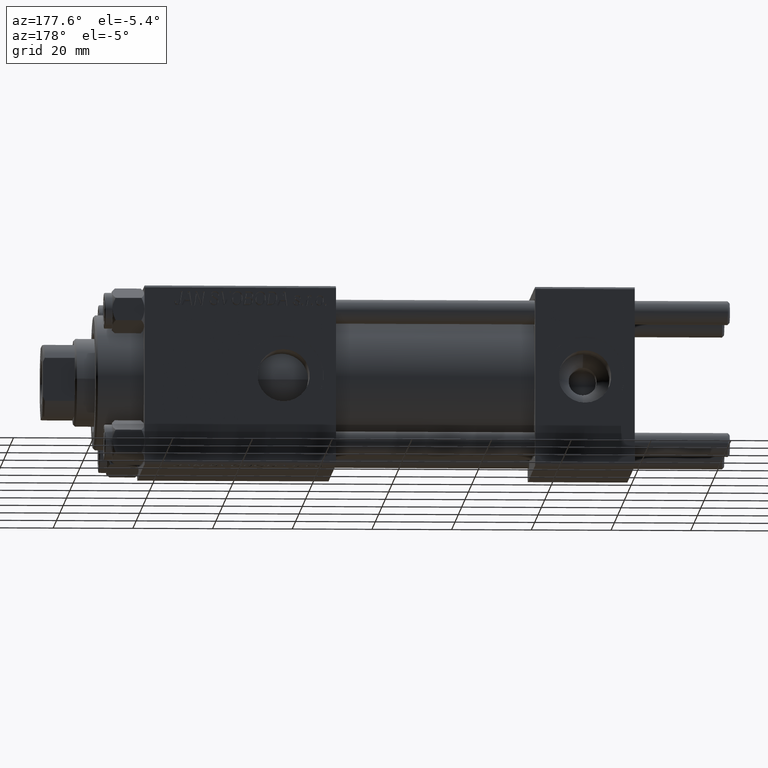
[diagram: clean part render]
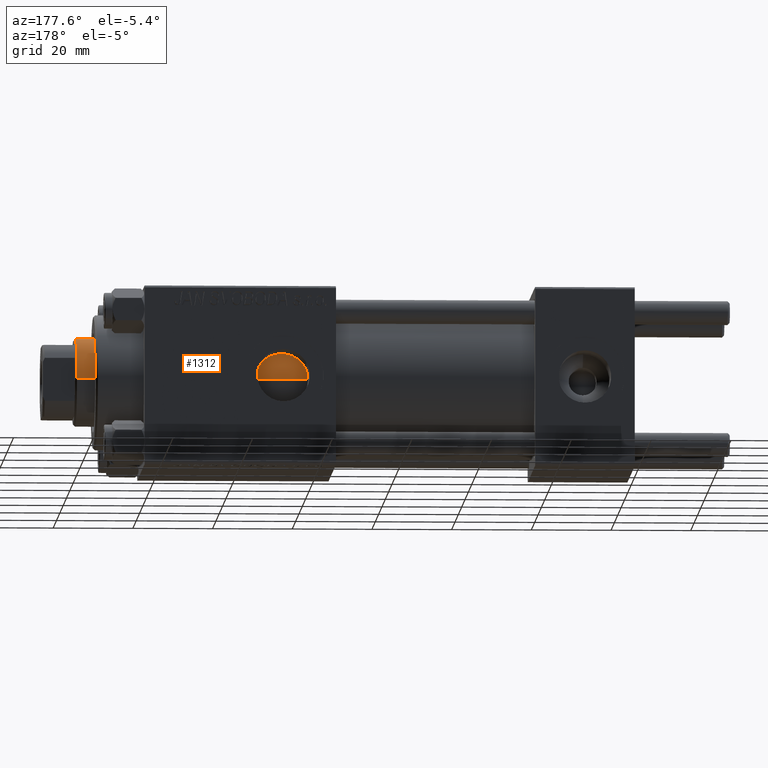
[diagram: same view with one face highlighted and labeled with its STEP entity id]
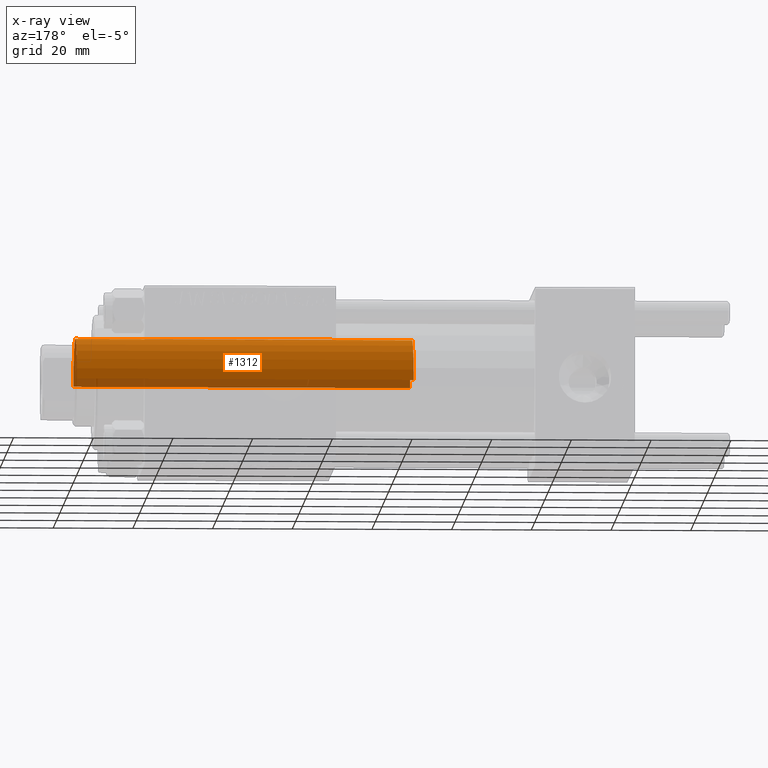
[diagram: x-ray of the same camera — body ghosted, the highlighted face saturated]
A machine part, auxiliary view. The second image highlights one B-rep face of the part: STEP entity #1312.
The next image is the same camera in x-ray: the body ghosted, the highlighted face saturated — about 18% of this face is hidden behind the body in this view.
In plain terms, the highlighted cylindrical surface (partial cylindrical patch) has radius 11 mm, axis along (-1, 0, 0).
Its self-contained STEP definition (entity closure, byte-faithful):
#1312 = ADVANCED_FACE ( 'NONE', ( #40380 ), #47169, .T. ) ;
#9300 = EDGE_CURVE ( 'NONE', #49308, #23341, #20912, .T. ) ;
#9402 = EDGE_LOOP ( 'NONE', ( #46488, #14556, #34116, #34864 ) ) ;
#9907 = CARTESIAN_POINT ( 'NONE',  ( 11.00000000000000000, 1.347111479062088405E-15, 30.00000000000000000 ) ) ;
#12815 = CARTESIAN_POINT ( 'NONE',  ( 11.00000000000000000, 1.347111479062088405E-15, 115.0000000000000000 ) ) ;
#12898 = CARTESIAN_POINT ( 'NONE',  ( 0.000000000000000000, 0.000000000000000000, 115.0000000000000000 ) ) ;
#14556 = ORIENTED_EDGE ( 'NONE', *, *, #9300, .T. ) ;
#16640 = CARTESIAN_POINT ( 'NONE',  ( -11.00000000000000000, 0.000000000000000000, 115.0000000000000000 ) ) ;
#18299 = VERTEX_POINT ( 'NONE', #33983 ) ;
#20556 = CARTESIAN_POINT ( 'NONE',  ( -11.00000000000000000, 0.000000000000000000, 114.5000000000000142 ) ) ;
#20912 = CIRCLE ( 'NONE', #46658, 11.00000000000000000 ) ;
#21331 = CARTESIAN_POINT ( 'NONE',  ( 0.000000000000000000, 0.000000000000000000, 30.00000000000000000 ) ) ;
#22050 = EDGE_CURVE ( 'NONE', #18299, #47957, #49335, .T. ) ;
#22748 = EDGE_CURVE ( 'NONE', #23341, #18299, #48372, .T. ) ;
#23341 = VERTEX_POINT ( 'NONE', #20556 ) ;
#24264 = DIRECTION ( 'NONE',  ( -1.000000000000000000, 0.000000000000000000, 0.000000000000000000 ) ) ;
#24511 = DIRECTION ( 'NONE',  ( 1.000000000000000000, 0.000000000000000000, 0.000000000000000000 ) ) ;
#24664 = AXIS2_PLACEMENT_3D ( 'NONE', #12898, #43403, #24264 ) ;
#26806 = CARTESIAN_POINT ( 'NONE',  ( 11.00000000000000000, 1.347111479062088405E-15, 114.5000000000000142 ) ) ;
#28302 = CARTESIAN_POINT ( 'NONE',  ( 0.000000000000000000, 0.000000000000000000, 114.5000000000000142 ) ) ;
#29225 = AXIS2_PLACEMENT_3D ( 'NONE', #21331, #36392, #43925 ) ;
#29264 = VECTOR ( 'NONE', #40083, 1000.000000000000000 ) ;
#32268 = DIRECTION ( 'NONE',  ( -0.000000000000000000, -0.000000000000000000, -1.000000000000000000 ) ) ;
#33983 = CARTESIAN_POINT ( 'NONE',  ( -11.00000000000000000, 0.000000000000000000, 30.00000000000000000 ) ) ;
#34116 = ORIENTED_EDGE ( 'NONE', *, *, #22748, .T. ) ;
#34864 = ORIENTED_EDGE ( 'NONE', *, *, #22050, .T. ) ;
#36392 = DIRECTION ( 'NONE',  ( 0.000000000000000000, 0.000000000000000000, 1.000000000000000000 ) ) ;
#40083 = DIRECTION ( 'NONE',  ( -0.000000000000000000, -0.000000000000000000, -1.000000000000000000 ) ) ;
#40380 = FACE_OUTER_BOUND ( 'NONE', #9402, .T. ) ;
#42674 = VECTOR ( 'NONE', #32268, 1000.000000000000000 ) ;
#43403 = DIRECTION ( 'NONE',  ( -0.000000000000000000, -0.000000000000000000, -1.000000000000000000 ) ) ;
#43653 = DIRECTION ( 'NONE',  ( 0.000000000000000000, 0.000000000000000000, -1.000000000000000000 ) ) ;
#43925 = DIRECTION ( 'NONE',  ( 1.000000000000000000, 0.000000000000000000, 0.000000000000000000 ) ) ;
#46488 = ORIENTED_EDGE ( 'NONE', *, *, #48714, .F. ) ;
#46658 = AXIS2_PLACEMENT_3D ( 'NONE', #28302, #43653, #24511 ) ;
#47169 = CYLINDRICAL_SURFACE ( 'NONE', #24664, 11.00000000000000000 ) ;
#47957 = VERTEX_POINT ( 'NONE', #9907 ) ;
#48372 = LINE ( 'NONE', #16640, #29264 ) ;
#48714 = EDGE_CURVE ( 'NONE', #49308, #47957, #48763, .T. ) ;
#48763 = LINE ( 'NONE', #12815, #42674 ) ;
#49308 = VERTEX_POINT ( 'NONE', #26806 ) ;
#49335 = CIRCLE ( 'NONE', #29225, 11.00000000000000000 ) ;